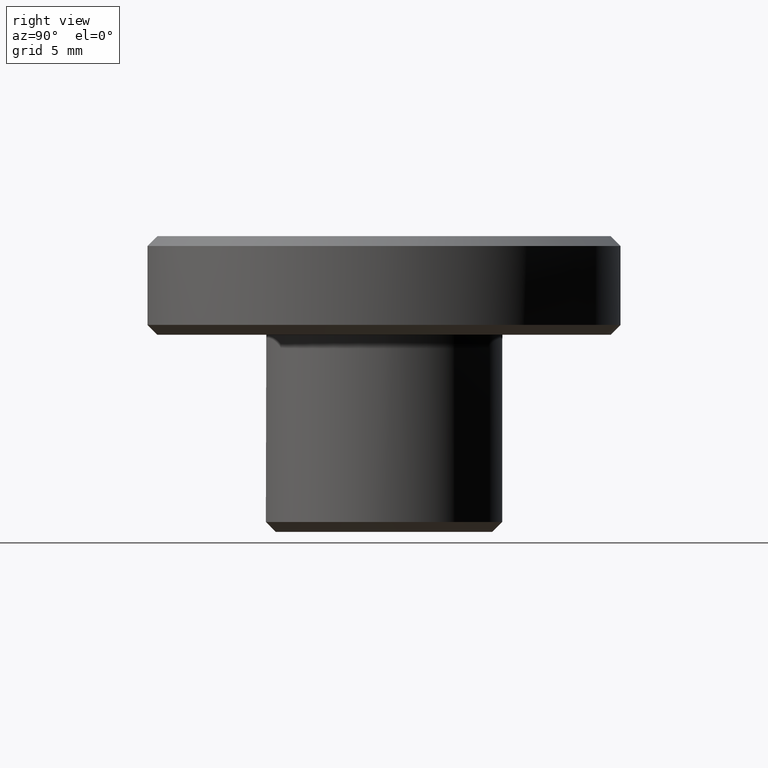
[diagram: clean part render]
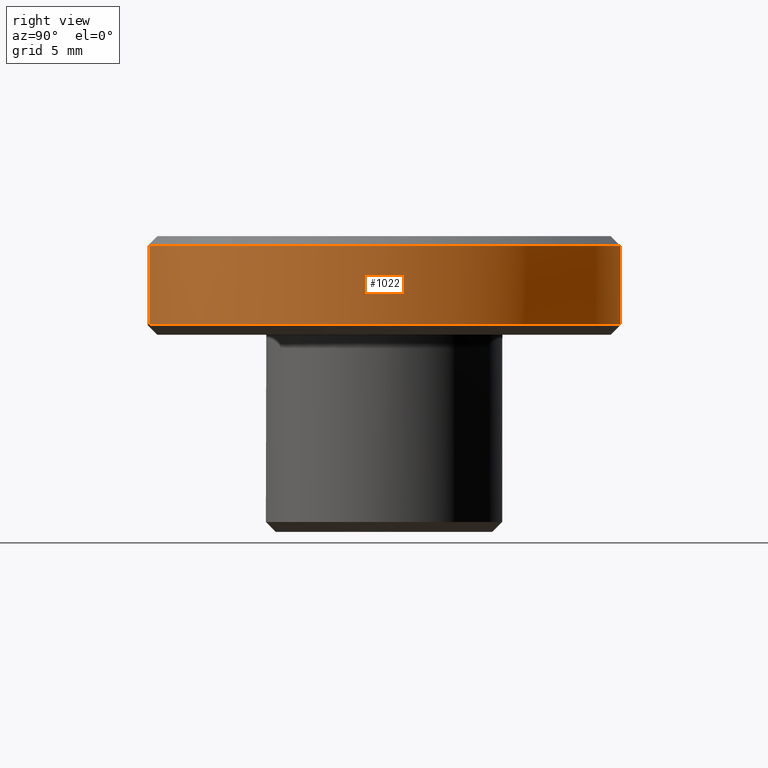
[diagram: same view with one face highlighted and labeled with its STEP entity id]
A machine part, right view. The second image highlights one B-rep face of the part: STEP entity #1022.
In plain terms, the highlighted face is a freeform B-spline surface patch.
Its self-contained STEP definition (entity closure, byte-faithful):
#118=CARTESIAN_POINT('',(0.104718426017089,11.999543076774710,14.499999999995021));
#119=VERTEX_POINT('',#118);
#125=CARTESIAN_POINT('',(-0.104710458545633,11.999543146295510,14.500000000000030));
#126=VERTEX_POINT('',#125);
#127=CARTESIAN_POINT('',(-0.104710458545633,11.999543146295510,14.500000000000037));
#128=CARTESIAN_POINT('',(-0.052356225903478,12.000000000000004,14.500000000000004));
#129=CARTESIAN_POINT('',(0.0,12.0,14.500000000000000));
#130=CARTESIAN_POINT('',(0.052360209884988,11.999999999999998,14.500000000000002));
#131=CARTESIAN_POINT('',(0.104718426017089,11.999543076774717,14.499999999995023));
#139=(BOUNDED_CURVE()B_SPLINE_CURVE(2,(#127,#128,#129,#130,#131),.UNSPECIFIED.,.F.,.U.)B_SPLINE_CURVE_WITH_KNOTS((3,2,3),(0.248460222619991,0.250000000000000,0.251539894336061),.UNSPECIFIED.)CURVE()GEOMETRIC_REPRESENTATION_ITEM()RATIONAL_B_SPLINE_CURVE((0.996414298767122,0.998196038587652,1.0,0.998195901565114,0.996414028097921))REPRESENTATION_ITEM(''));
#140=EDGE_CURVE('',#126,#119,#139,.T.);
#180=CARTESIAN_POINT('',(1.489536029010390,-11.907194565399520,14.500000000000000));
#181=VERTEX_POINT('',#180);
#197=CARTESIAN_POINT('',(12.0,0.0,14.500000000000000));
#198=VERTEX_POINT('',#197);
#199=CARTESIAN_POINT('',(12.0,0.0,14.500000000000000));
#200=CARTESIAN_POINT('',(12.0,-10.592383194536700,14.500000000000004));
#201=CARTESIAN_POINT('',(1.489536029010390,-11.907194565399520,14.499999999999996));
#209=(BOUNDED_CURVE()B_SPLINE_CURVE(2,(#199,#200,#201),.UNSPECIFIED.,.F.,.U.)B_SPLINE_CURVE_WITH_KNOTS((3,3),(0.500000000000000,0.728526070914508),.UNSPECIFIED.)CURVE()GEOMETRIC_REPRESENTATION_ITEM()RATIONAL_B_SPLINE_CURVE((1.0,0.732265054028234,0.954005430051953))REPRESENTATION_ITEM(''));
#210=EDGE_CURVE('',#198,#181,#209,.T.);
#212=CARTESIAN_POINT('',(0.104718426017089,11.999543076774710,14.499999999995024));
#213=CARTESIAN_POINT('',(12.0,11.895734527067249,14.500000000000004));
#214=CARTESIAN_POINT('',(12.0,0.0,14.500000000000000));
#222=(BOUNDED_CURVE()B_SPLINE_CURVE(2,(#212,#213,#214),.UNSPECIFIED.,.F.,.U.)B_SPLINE_CURVE_WITH_KNOTS((3,3),(0.251539894336060,0.500000000000000),.UNSPECIFIED.)CURVE()GEOMETRIC_REPRESENTATION_ITEM()RATIONAL_B_SPLINE_CURVE((0.996414028097922,0.708910879621433,1.0))REPRESENTATION_ITEM(''));
#223=EDGE_CURVE('',#119,#198,#222,.T.);
#361=CARTESIAN_POINT('',(-0.104709888522540,11.999543151269251,10.500000000000000));
#362=VERTEX_POINT('',#361);
#376=CARTESIAN_POINT('',(12.0,0.0,10.500000000000000));
#377=VERTEX_POINT('',#376);
#378=CARTESIAN_POINT('',(12.0,0.0,10.500000000000000));
#379=CARTESIAN_POINT('',(12.0,12.0,10.500000000000002));
#380=CARTESIAN_POINT('',(0.0,12.0,10.500000000000000));
#381=CARTESIAN_POINT('',(-0.052355940875657,11.999999999999996,10.499999999999998));
#382=CARTESIAN_POINT('',(-0.104709888522540,11.999543151269243,10.500000000000002));
#390=(BOUNDED_CURVE()B_SPLINE_CURVE(2,(#378,#379,#380,#381,#382),.UNSPECIFIED.,.F.,.U.)B_SPLINE_CURVE_WITH_KNOTS((3,2,3),(0.500000000000000,0.750000000000000,0.751539769012567),.UNSPECIFIED.)CURVE()GEOMETRIC_REPRESENTATION_ITEM()RATIONAL_B_SPLINE_CURVE((1.0,0.707106781186548,1.0,0.998196048390720,0.996414318131745))REPRESENTATION_ITEM(''));
#391=EDGE_CURVE('',#377,#362,#390,.T.);
#393=CARTESIAN_POINT('',(9.826393352526885,-6.887814869856838,10.500000000000259));
#394=VERTEX_POINT('',#393);
#395=CARTESIAN_POINT('',(9.826393352526885,-6.887814869856837,10.500000000000263));
#396=CARTESIAN_POINT('',(11.999999999999998,-3.786872943384453,10.500000000000002));
#397=CARTESIAN_POINT('',(12.0,0.0,10.500000000000000));
#405=(BOUNDED_CURVE()B_SPLINE_CURVE(2,(#395,#396,#397),.UNSPECIFIED.,.F.,.U.)B_SPLINE_CURVE_WITH_KNOTS((3,3),(0.401326273796982,0.500000000000000),.UNSPECIFIED.)CURVE()GEOMETRIC_REPRESENTATION_ITEM()RATIONAL_B_SPLINE_CURVE((0.860049271925800,0.884396538880323,1.0))REPRESENTATION_ITEM(''));
#406=EDGE_CURVE('',#394,#377,#405,.T.);
#444=CARTESIAN_POINT('',(1.489527852717329,-11.907195588211000,10.500000000000000));
#445=VERTEX_POINT('',#444);
#446=CARTESIAN_POINT('',(1.489527852717330,-11.907195588211003,10.500000000000000));
#447=CARTESIAN_POINT('',(6.771178976043741,-11.246488673789804,10.499999999999998));
#448=CARTESIAN_POINT('',(9.826393352526885,-6.887814869856837,10.500000000000263));
#456=(BOUNDED_CURVE()B_SPLINE_CURVE(2,(#446,#447,#448),.UNSPECIFIED.,.F.,.U.)B_SPLINE_CURVE_WITH_KNOTS((3,3),(0.271473813224281,0.401326273796981),.UNSPECIFIED.)CURVE()GEOMETRIC_REPRESENTATION_ITEM()RATIONAL_B_SPLINE_CURVE((0.954005654893896,0.828008802350745,0.860049271925800))REPRESENTATION_ITEM(''));
#457=EDGE_CURVE('',#445,#394,#456,.T.);
#986=CARTESIAN_POINT('',(1.489536024957952,-11.907194565906458,10.399999999999999));
#987=CARTESIAN_POINT('',(12.092793966029335,-10.580775097598652,10.399999999999999));
#988=CARTESIAN_POINT('',(11.999543076770051,0.104718425980487,10.400000000000000));
#989=CARTESIAN_POINT('',(11.894824650789566,12.104261502750537,10.399999999999999));
#990=CARTESIAN_POINT('',(-0.104718425980487,11.999543076770051,10.400000000000000));
#991=CARTESIAN_POINT('',(1.489536024957952,-11.907194565906458,14.602500000000010));
#992=CARTESIAN_POINT('',(12.092793966029335,-10.580775097598652,14.602500000000004));
#993=CARTESIAN_POINT('',(11.999543076770051,0.104718425980487,14.602499999999999));
#994=CARTESIAN_POINT('',(11.894824650789566,12.104261502750537,14.602499999999997));
#995=CARTESIAN_POINT('',(-0.104718425980487,11.999543076770051,14.602499999999999));
#1003=(BOUNDED_SURFACE()B_SPLINE_SURFACE(2,1,((#986,#991),(#987,#992),(#988,#993),(#989,#994),(#990,#995)),.UNSPECIFIED.,.F.,.F.,.U.)B_SPLINE_SURFACE_WITH_KNOTS((3,2,3),(2,2),(0.0,18.291670914395869,38.173921908304429),(0.0,4.202500000000006),.UNSPECIFIED.)GEOMETRIC_REPRESENTATION_ITEM()RATIONAL_B_SPLINE_SURFACE(((0.956886118190660,0.956886118190660),(0.730538238691624,0.730538238691624),(1.0,1.0),(0.707106781186548,0.707106781186548),(1.0,1.0)))REPRESENTATION_ITEM('')SURFACE());
#1004=ORIENTED_EDGE('',*,*,#210,.T.);
#1005=CARTESIAN_POINT('',(1.489527852717329,-11.907195588211000,10.500000000000000));
#1006=CARTESIAN_POINT('',(1.489536029010390,-11.907194565399520,14.500000000000000));
#1007=QUASI_UNIFORM_CURVE('',1,(#1005,#1006),.UNSPECIFIED.,.F.,.U.);
#1008=EDGE_CURVE('',#445,#181,#1007,.T.);
#1009=ORIENTED_EDGE('',*,*,#1008,.F.);
#1010=ORIENTED_EDGE('',*,*,#457,.T.);
#1011=ORIENTED_EDGE('',*,*,#406,.T.);
#1012=ORIENTED_EDGE('',*,*,#391,.T.);
#1013=CARTESIAN_POINT('',(-0.104709888522540,11.999543151269251,10.500000000000000));
#1014=CARTESIAN_POINT('',(-0.104710458545633,11.999543146295510,14.500000000000030));
#1015=QUASI_UNIFORM_CURVE('',1,(#1013,#1014),.UNSPECIFIED.,.F.,.U.);
#1016=EDGE_CURVE('',#362,#126,#1015,.T.);
#1017=ORIENTED_EDGE('',*,*,#1016,.T.);
#1018=ORIENTED_EDGE('',*,*,#140,.T.);
#1019=ORIENTED_EDGE('',*,*,#223,.T.);
#1020=EDGE_LOOP('',(#1004,#1009,#1010,#1011,#1012,#1017,#1018,#1019));
#1021=FACE_OUTER_BOUND('',#1020,.T.);
#1022=ADVANCED_FACE('',(#1021),#1003,.T.);